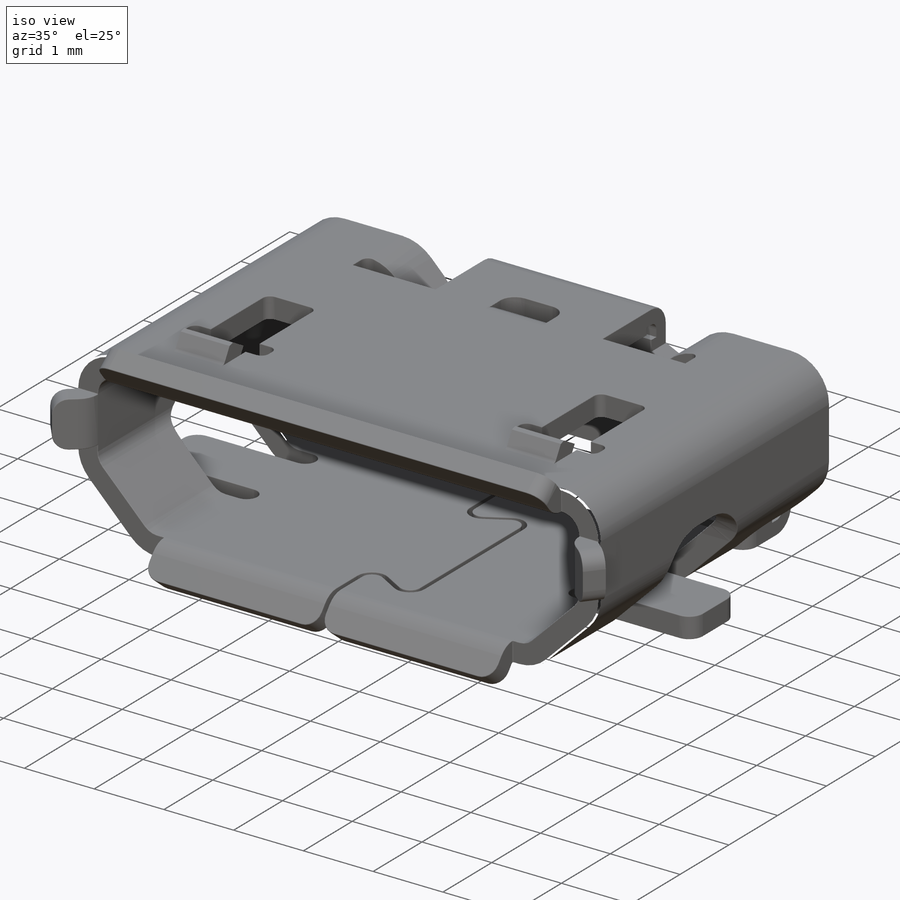
[diagram: iso view]
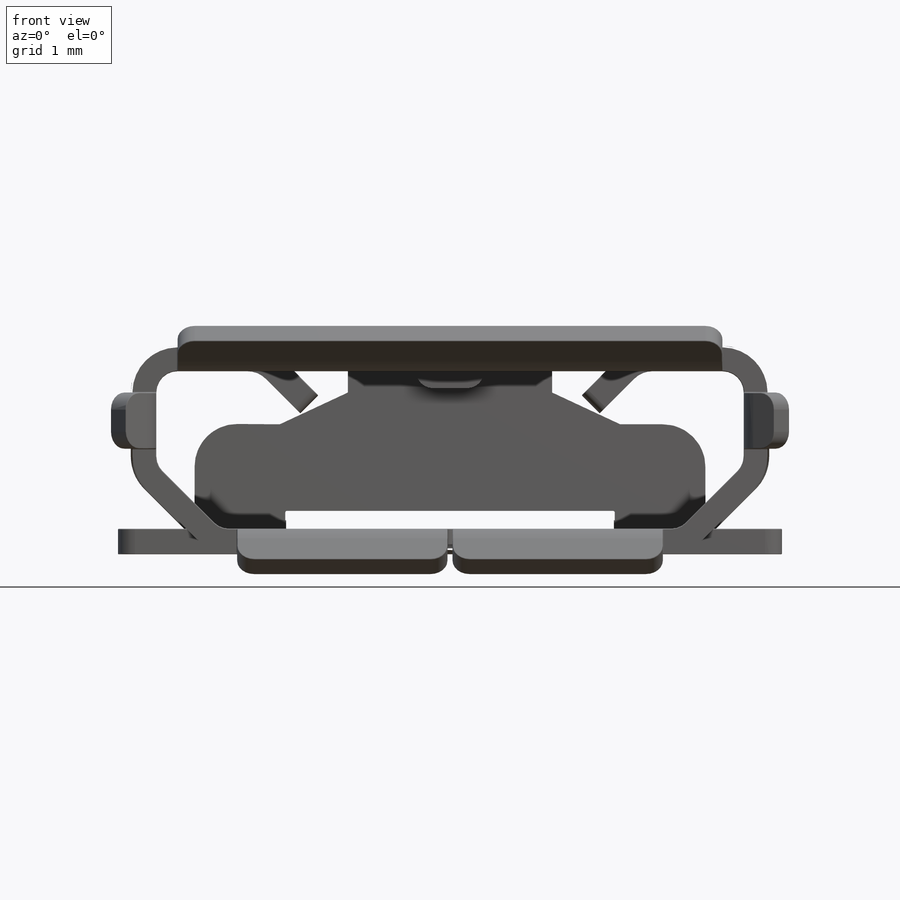
[diagram: front view]
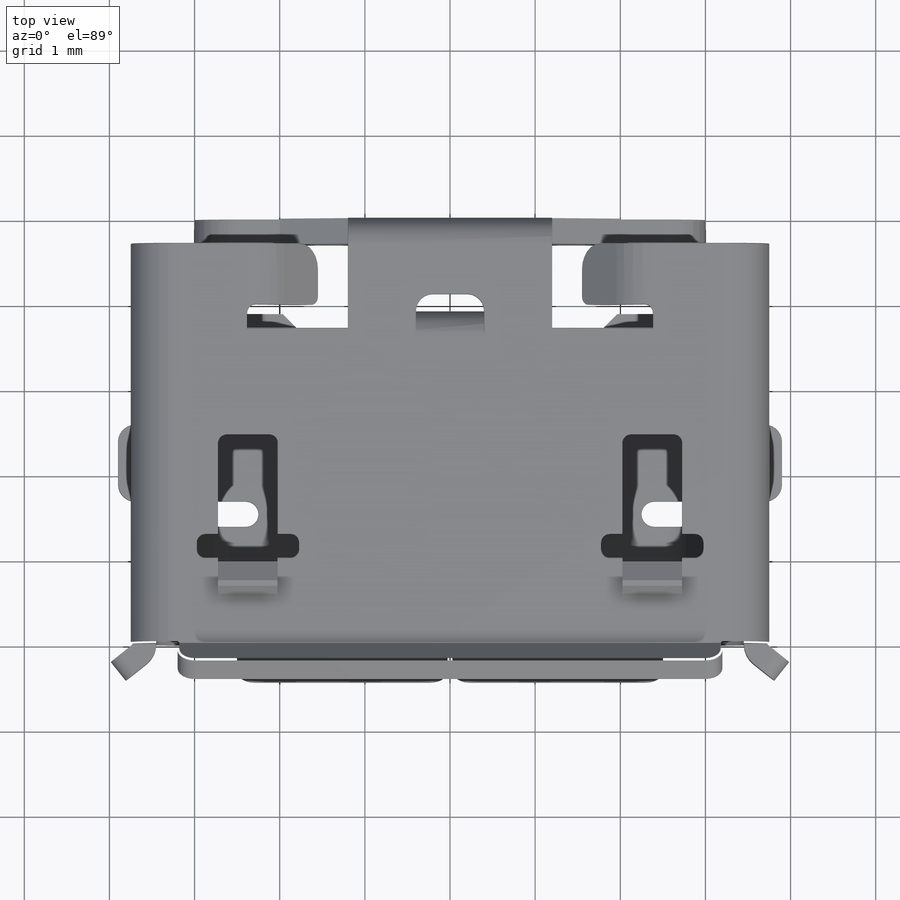
[diagram: top view]
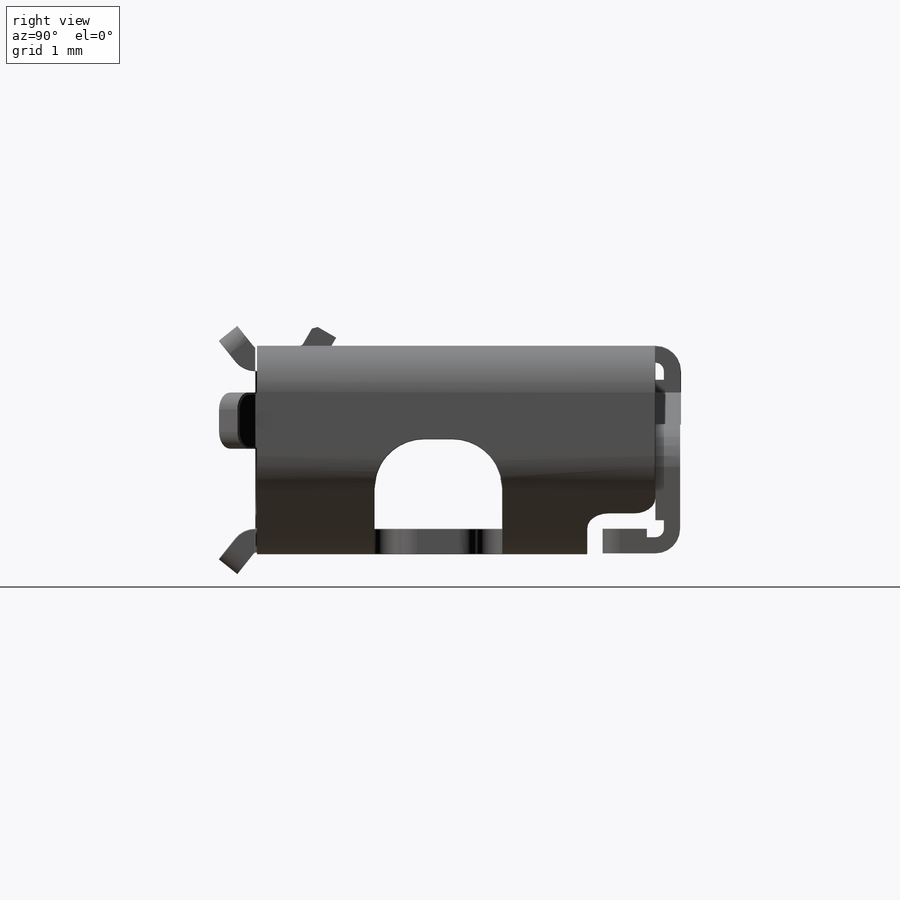
[diagram: right view]
SOLIDWORKS PART (.sldprt)
format: sldprt  version: not decoded by parser v0  size: 3,685,888 bytes
history: native  units: mm
features: fillet x24, sketch x20, extrude x11, cut_extrude x8, plane x3, chamfer x2, material x1 (+13 scaffold rows collapsed)
feature tree (82):
  scaffold x13  (default folders/planes/origin — collapsed)
  material  "Material <not specified>"
  sketch  "Sketch1"  dims[D1=6.9mm D2=1.85mm D3=0.3mm D4=0.3mm]
  extrude  "Boss-Extrude1"  Depth=4.7mm
  sketch  "Sketch2"  dims[c1.D7=0.1mm c1.D11=0.2mm c1.D1=4.75mm c1.D2=1.45mm c1.D3=0.7mm c1.D4=1.0mm c1.D5=1.2mm c1.D6=0.28mm c1.D8=2.4mm c1.D9=0.8mm c1.D10=0.5mm c1.D12=0.05mm c2.D2=0.3mm c2.D4=2.45mm c2.D12=1.0mm c2.D13=1.1mm]
  cut_extrude  "Cut-Extrude1"  Depth=0.4mm
  sketch  "Sketch3"  dims[c1.D9=0.2mm c1.D10=0.14mm c1.D1=2.15mm c1.D2=0.3mm c1.D3=0.9mm c1.D4=1.35mm c1.D5=0.06mm c1.D6=0.8mm c1.D7=~4.436496mm c2.D7=60.0deg c2.D8=~1.214852mm c3.D8=60.0deg c3.D9=0.06mm c3.D12=3.5mm c3.D13=0.4mm c3.D14=3.6mm c3.D15=6.0mm c3.D11=0.06mm]
  cut_extrude  "Cut-Extrude2"  Depth=0.4mm
  sketch  "Sketch4"  dims[D1=3.3mm]
  cut_extrude  "Cut-Extrude3"  [1 undecoded]
  fillet  "Fillet1"  Radius=0.25mm
  fillet  "Fillet3"  Radius=0.1mm
  chamfer  "Chamfer1"  Distance=0.15mm Angle=45deg
  sketch  "Sketch5"  dims[D1=1.35mm]
  cut_extrude  "Cut-Extrude4"  [1 undecoded]
  sketch  "Sketch6"  dims[D2=0.2mm D1=7.8mm]
  extrude  "Boss-Extrude2"  [1 undecoded]
  sketch  "Sketch7"  dims[D1=0.43mm D2=0.3mm D3=2.94mm D4=0.3mm]
  extrude  "Boss-Extrude3"  Depth=6.4mm
  sketch  "Sketch8"
  extrude  "Boss-Extrude4"  Depth=5mm
  sketch  "Sketch9"
  cut_extrude  "Cut-Extrude5"  Depth=1mm
  fillet  "Fillet4"  Radius=0.2mm
  plane  "Plane1"
  sketch  "Sketch12"  dims[D2=0.3mm D1=0.3mm D3=0.43mm D4=0.545mm]
  extrude  "Boss-Extrude5"  Depth=0.66mm
  fillet  "Fillet5"  Radius=0.2mm
  sketch  "Sketch13"  dims[c1.D1=6.0mm c1.D2=~0.373223mm c1.D3=~0.301777mm c2.D2=0.5mm c2.D1=4.0mm c2.D3=~0.86835mm c3.D3=~25.455343deg c3.D1=6.0mm c4.D3=4.0mm c4.D4=3.85mm c4.D5=3.85mm c5.D4=3.85mm c5.D5=0.5mm]
  extrude  "Boss-Extrude6"  Depth=0.3mm
  fillet  "Fillet6"  Radius=0.3mm
  sketch  "Sketch14"  dims[D2=0.2mm D1=0.92mm]
  extrude  "Boss-Extrude7"  Depth=0.3mm
  fillet  "Fillet8"  Radius=0.3mm
  sketch  "Sketch15"  dims[D1=0.2mm]
  cut_extrude  "Cut-Extrude6"  Depth=7mm
  sketch  "Sketch16"
  cut_extrude  "Cut-Extrude7"  Depth=3mm
  fillet  "Fillet10"  Radius=0.5mm
  plane  "Plane2"
  plane  "Plane3"
  sketch  "Sketch17"  dims[c1.D1=0.95mm c1.D2=~0.74697mm c2.D2=~128.590071deg c3.D2=~0.548488mm c4.D2=60.0deg c4.D3=0.3mm c4.D4=0.3mm]
  extrude  "Boss-Extrude8"  Depth=0.7mm
  sketch  "Sketch18"
  extrude  "Boss-Extrude9"  Depth=0.7mm
  fillet  "Fillet11"  Radius=0.3mm
  fillet  "Fillet12"  Radius=0.05mm
  chamfer  "Chamfer2"  Distance=0.05mm Angle=45deg
  sketch  "Sketch19"  dims[c1.D5=0.6mm c1.D6=0.3mm c1.D1=0.7mm c1.D2=~0.809051mm c2.D2=135.0deg c2.D3=0.13mm c2.D4=0.3mm]
  extrude  "Boss-Extrude10"  Depth=0.72mm
  fillet  "Fillet13"  Radius=0.1mm
  fillet  "Fillet14"  Radius=0.3mm
  fillet  "Fillet15"  Radius=0.1mm
  sketch  "Sketch20"
  sketch  "Sketch21"  dims[D1=0.35mm D2=1.76mm D3=1.96mm D4=0.35mm D5=0.27mm]
  cut_extrude  "Cut-Extrude8"  Depth=0.05mm
  fillet  "Fillet16"  Radius=0.05mm
  fillet  "Fillet17"  Radius=0.05mm
  fillet  "Fillet18"  Radius=0.05mm
  sketch  "Sketch23"  dims[D3=0.3mm D1=0.3mm D2=0.5mm]
  extrude  "Boss-Extrude12"  Depth=0.8mm
  fillet  "Fillet19"  Radius=0.2mm
  fillet  "Fillet20"  Radius=0.01mm
  fillet  "Fillet21"  Radius=0.01mm
  fillet  "Fillet22"  Radius=0.01mm
  fillet  "Fillet23"  Radius=0.01mm
  fillet  "Fillet24"  Radius=0.01mm
  fillet  "Fillet25"  Radius=0.01mm
  fillet  "Fillet26"  Radius=0.02mm
  fillet  "Fillet27"  Radius=0.02mm
decode coverage: 57 of 65 modeling features carry decoded parameters
note: ~ marks probable driven/reference dimensions
note: 3 parameter values undecoded
summary: no parameter record found for 3 features
note: suppression state not decoded; provenance and decode notes live in map.json
